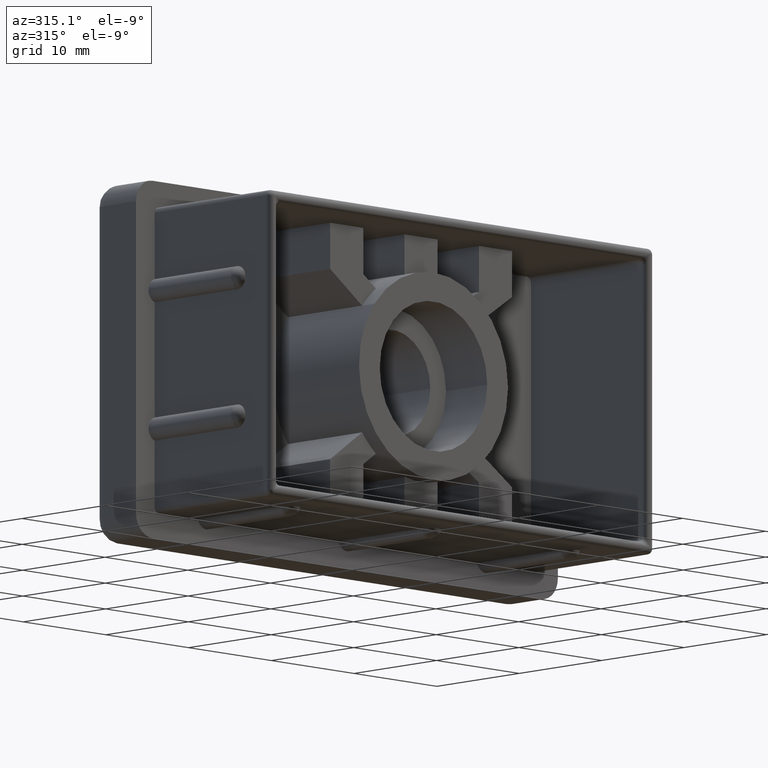
[diagram: clean part render]
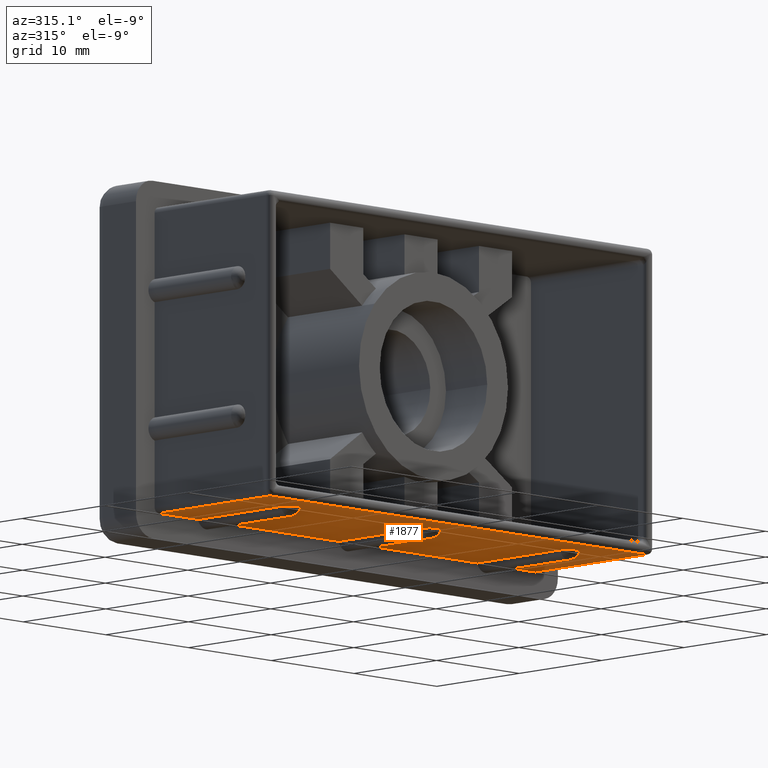
[diagram: same view with one face highlighted and labeled with its STEP entity id]
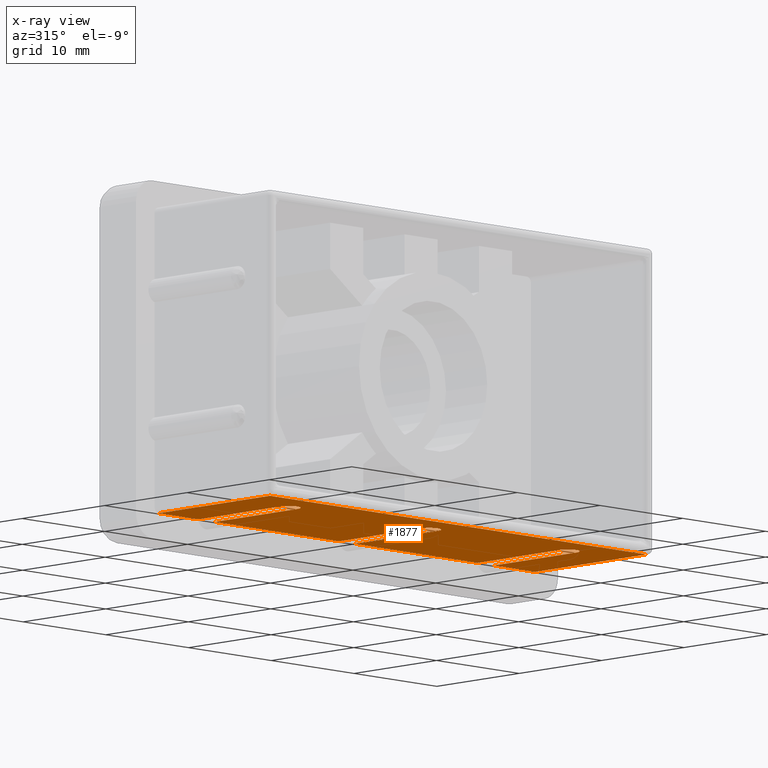
[diagram: x-ray of the same camera — body ghosted, the highlighted face saturated]
A machine part, auxiliary view. The second image highlights one B-rep face of the part: STEP entity #1877.
The next image is the same camera in x-ray: the body ghosted, the highlighted face saturated — about 0% of this face is hidden behind the body in this view.
In plain terms, the highlighted planar face has unit normal (-0, 0, -1).
Its self-contained STEP definition (entity closure, byte-faithful):
#30=B_SPLINE_CURVE_WITH_KNOTS('',3,(#2734,#2735,#2736,#2737,#2738,#2739,
#2740,#2741,#2742,#2743,#2744,#2745),.UNSPECIFIED.,.F.,.F.,(4,2,2,2,2,4),
(0.,0.0381777170336773,0.0761327850219309,0.113978632615433,0.15081953476145,
0.151166618433656),.UNSPECIFIED.);
#31=B_SPLINE_CURVE_WITH_KNOTS('',3,(#2749,#2750,#2751,#2752,#2753,#2754,
#2755,#2756,#2757,#2758,#2759,#2760),.UNSPECIFIED.,.F.,.F.,(4,2,2,2,2,4),
(-0.000348270337501188,0.,0.036834434892124,0.0746737420821856,0.112622202082561,
0.150792726476627),.UNSPECIFIED.);
#32=B_SPLINE_CURVE_WITH_KNOTS('',3,(#2768,#2769,#2770,#2771,#2772,#2773,
#2774,#2775,#2776,#2777,#2778,#2779),.UNSPECIFIED.,.F.,.F.,(4,2,2,2,2,4),
(0.,0.0381777170336762,0.0761327850219618,0.113978632615477,0.150819534761407,
0.151166618433711),.UNSPECIFIED.);
#33=B_SPLINE_CURVE_WITH_KNOTS('',3,(#2783,#2784,#2785,#2786,#2787,#2788,
#2789,#2790,#2791,#2792,#2793,#2794),.UNSPECIFIED.,.F.,.F.,(4,2,2,2,2,4),
(-0.000348270337514939,0.,0.0368344348920442,0.0746737420820881,0.112622202082372,
0.150792726476374),.UNSPECIFIED.);
#34=B_SPLINE_CURVE_WITH_KNOTS('',3,(#2802,#2803,#2804,#2805,#2806,#2807,
#2808,#2809,#2810,#2811,#2812,#2813),.UNSPECIFIED.,.F.,.F.,(4,2,2,2,2,4),
(0.,0.0381777170337059,0.0761327850219093,0.113978632615353,0.150819534761347,
0.151166618433565),.UNSPECIFIED.);
#35=B_SPLINE_CURVE_WITH_KNOTS('',3,(#2817,#2818,#2819,#2820,#2821,#2822,
#2823,#2824,#2825,#2826,#2827,#2828),.UNSPECIFIED.,.F.,.F.,(4,2,2,2,2,4),
(-0.000348270337514007,0.,0.0368344348921081,0.074673742082142,0.112622202082497,
0.150792726476603),.UNSPECIFIED.);
#60=PLANE('',#1992);
#131=LINE('',#2679,#307);
#135=LINE('',#2726,#311);
#136=LINE('',#2728,#312);
#137=LINE('',#2730,#313);
#138=LINE('',#2732,#314);
#139=LINE('',#2747,#315);
#140=LINE('',#2762,#316);
#141=LINE('',#2764,#317);
#142=LINE('',#2766,#318);
#143=LINE('',#2781,#319);
#144=LINE('',#2796,#320);
#145=LINE('',#2798,#321);
#146=LINE('',#2800,#322);
#147=LINE('',#2815,#323);
#148=LINE('',#2830,#324);
#149=LINE('',#2831,#325);
#307=VECTOR('',#2163,13.5);
#311=VECTOR('',#2181,45.5);
#312=VECTOR('',#2182,13.5);
#313=VECTOR('',#2183,4.75000000000001);
#314=VECTOR('',#2184,10.04);
#315=VECTOR('',#2185,0.083333333333333);
#316=VECTOR('',#2186,10.04);
#317=VECTOR('',#2187,15.);
#318=VECTOR('',#2188,10.04);
#319=VECTOR('',#2189,0.0833333333333286);
#320=VECTOR('',#2190,10.04);
#321=VECTOR('',#2191,14.75);
#322=VECTOR('',#2192,10.04);
#323=VECTOR('',#2193,0.0833333333333375);
#324=VECTOR('',#2194,10.04);
#325=VECTOR('',#2195,4.99999999999999);
#521=FACE_OUTER_BOUND('',#627,.T.);
#627=EDGE_LOOP('',(#1307,#1308,#1309,#1310,#1311,#1312,#1313,#1314,#1315,
#1316,#1317,#1318,#1319,#1320,#1321,#1322,#1323,#1324,#1325,#1326,#1327,
#1328));
#813=VERTEX_POINT('',#2671);
#816=VERTEX_POINT('',#2678);
#822=VERTEX_POINT('',#2725);
#823=VERTEX_POINT('',#2727);
#824=VERTEX_POINT('',#2729);
#825=VERTEX_POINT('',#2731);
#826=VERTEX_POINT('',#2733);
#827=VERTEX_POINT('',#2746);
#828=VERTEX_POINT('',#2748);
#829=VERTEX_POINT('',#2761);
#830=VERTEX_POINT('',#2763);
#831=VERTEX_POINT('',#2765);
#832=VERTEX_POINT('',#2767);
#833=VERTEX_POINT('',#2780);
#834=VERTEX_POINT('',#2782);
#835=VERTEX_POINT('',#2795);
#836=VERTEX_POINT('',#2797);
#837=VERTEX_POINT('',#2799);
#838=VERTEX_POINT('',#2801);
#839=VERTEX_POINT('',#2814);
#840=VERTEX_POINT('',#2816);
#841=VERTEX_POINT('',#2829);
#1008=EDGE_CURVE('',#813,#816,#131,.T.);
#1017=EDGE_CURVE('',#822,#813,#135,.T.);
#1018=EDGE_CURVE('',#823,#822,#136,.T.);
#1019=EDGE_CURVE('',#824,#823,#137,.T.);
#1020=EDGE_CURVE('',#824,#825,#138,.T.);
#1021=EDGE_CURVE('',#826,#825,#30,.F.);
#1022=EDGE_CURVE('',#826,#827,#139,.T.);
#1023=EDGE_CURVE('',#827,#828,#31,.T.);
#1024=EDGE_CURVE('',#828,#829,#140,.T.);
#1025=EDGE_CURVE('',#830,#829,#141,.T.);
#1026=EDGE_CURVE('',#830,#831,#142,.T.);
#1027=EDGE_CURVE('',#832,#831,#32,.F.);
#1028=EDGE_CURVE('',#832,#833,#143,.T.);
#1029=EDGE_CURVE('',#833,#834,#33,.T.);
#1030=EDGE_CURVE('',#834,#835,#144,.T.);
#1031=EDGE_CURVE('',#836,#835,#145,.T.);
#1032=EDGE_CURVE('',#836,#837,#146,.T.);
#1033=EDGE_CURVE('',#838,#837,#34,.F.);
#1034=EDGE_CURVE('',#838,#839,#147,.T.);
#1035=EDGE_CURVE('',#839,#840,#35,.T.);
#1036=EDGE_CURVE('',#840,#841,#148,.T.);
#1037=EDGE_CURVE('',#816,#841,#149,.T.);
#1307=ORIENTED_EDGE('',*,*,#1008,.F.);
#1308=ORIENTED_EDGE('',*,*,#1017,.F.);
#1309=ORIENTED_EDGE('',*,*,#1018,.F.);
#1310=ORIENTED_EDGE('',*,*,#1019,.F.);
#1311=ORIENTED_EDGE('',*,*,#1020,.T.);
#1312=ORIENTED_EDGE('',*,*,#1021,.F.);
#1313=ORIENTED_EDGE('',*,*,#1022,.T.);
#1314=ORIENTED_EDGE('',*,*,#1023,.T.);
#1315=ORIENTED_EDGE('',*,*,#1024,.T.);
#1316=ORIENTED_EDGE('',*,*,#1025,.F.);
#1317=ORIENTED_EDGE('',*,*,#1026,.T.);
#1318=ORIENTED_EDGE('',*,*,#1027,.F.);
#1319=ORIENTED_EDGE('',*,*,#1028,.T.);
#1320=ORIENTED_EDGE('',*,*,#1029,.T.);
#1321=ORIENTED_EDGE('',*,*,#1030,.T.);
#1322=ORIENTED_EDGE('',*,*,#1031,.F.);
#1323=ORIENTED_EDGE('',*,*,#1032,.T.);
#1324=ORIENTED_EDGE('',*,*,#1033,.F.);
#1325=ORIENTED_EDGE('',*,*,#1034,.T.);
#1326=ORIENTED_EDGE('',*,*,#1035,.T.);
#1327=ORIENTED_EDGE('',*,*,#1036,.T.);
#1328=ORIENTED_EDGE('',*,*,#1037,.F.);
#1877=ADVANCED_FACE('',(#521),#60,.T.);
#1992=AXIS2_PLACEMENT_3D('',#2724,#2179,#2180);
#2163=DIRECTION('',(0.,1.,0.));
#2179=DIRECTION('center_axis',(-2.86509167645202E-16,0.,-1.));
#2180=DIRECTION('ref_axis',(-1.,0.,3.5527136788005E-16));
#2181=DIRECTION('',(1.,0.,-2.86509167645202E-16));
#2182=DIRECTION('',(0.,-1.,0.));
#2183=DIRECTION('',(-1.,0.,2.86509167645202E-16));
#2184=DIRECTION('',(0.,-1.,0.));
#2185=DIRECTION('',(1.,1.11802052883818E-30,-2.86509167645202E-16));
#2186=DIRECTION('',(0.,1.,0.));
#2187=DIRECTION('',(-1.,0.,2.86509167645202E-16));
#2188=DIRECTION('',(0.,-1.,0.));
#2189=DIRECTION('',(1.,1.27773774724363E-30,-2.86509167645202E-16));
#2190=DIRECTION('',(0.,1.,0.));
#2191=DIRECTION('',(-1.,0.,2.86509167645202E-16));
#2192=DIRECTION('',(0.,-1.,0.));
#2193=DIRECTION('',(1.,-1.91660662086545E-30,-2.86509167645202E-16));
#2194=DIRECTION('',(0.,1.,0.));
#2195=DIRECTION('',(-1.,0.,2.86509167645202E-16));
#2671=CARTESIAN_POINT('',(46.,0.5,-26.5));
#2678=CARTESIAN_POINT('',(46.,14.,-26.5));
#2679=CARTESIAN_POINT('',(46.,0.,-26.5));
#2724=CARTESIAN_POINT('Origin',(46.5,0.,-26.5));
#2725=CARTESIAN_POINT('',(0.499999999999998,0.5,-26.5));
#2726=CARTESIAN_POINT('',(34.875,0.5,-26.5));
#2727=CARTESIAN_POINT('',(0.499999999999998,14.,-26.5));
#2728=CARTESIAN_POINT('',(0.499999999999998,0.,-26.5));
#2729=CARTESIAN_POINT('',(5.25000000000001,14.,-26.5));
#2730=CARTESIAN_POINT('',(46.5,14.,-26.5));
#2731=CARTESIAN_POINT('',(5.25000000000001,3.96,-26.5));
#2732=CARTESIAN_POINT('',(5.25000000000001,14.,-26.5));
#2733=CARTESIAN_POINT('',(6.20833333333334,3.,-26.5));
#2734=CARTESIAN_POINT('Ctrl Pts',(5.25,3.96,-26.5));
#2735=CARTESIAN_POINT('Ctrl Pts',(5.25,3.83274094322107,-26.5));
#2736=CARTESIAN_POINT('Ctrl Pts',(5.2752253737471,3.70675081638066,-26.5));
#2737=CARTESIAN_POINT('Ctrl Pts',(5.37303209591614,3.47259885702832,-26.5));
#2738=CARTESIAN_POINT('Ctrl Pts',(5.4443740631272,3.3666470192674,-26.5));
#2739=CARTESIAN_POINT('Ctrl Pts',(5.62381309503585,3.18880057910979,-26.5));
#2740=CARTESIAN_POINT('Ctrl Pts',(5.73004675420461,3.11855221455567,-26.5000000000353));
#2741=CARTESIAN_POINT('Ctrl Pts',(5.96052803803035,3.02453295746145,-26.5000000000353));
#2742=CARTESIAN_POINT('Ctrl Pts',(6.08208169868931,3.00045174450247,-26.5));
#2743=CARTESIAN_POINT('Ctrl Pts',(6.20601983514332,3.00000209834013,-26.5));
#2744=CARTESIAN_POINT('Ctrl Pts',(6.20717658376274,3.,-26.5));
#2745=CARTESIAN_POINT('Ctrl Pts',(6.20833333333334,3.,-26.5));
#2746=CARTESIAN_POINT('',(6.29166666666667,3.,-26.5));
#2747=CARTESIAN_POINT('',(26.375,3.,-26.5));
#2748=CARTESIAN_POINT('',(7.25000000000002,3.96,-26.5));
#2749=CARTESIAN_POINT('Ctrl Pts',(6.29166666666667,3.,-26.5));
#2750=CARTESIAN_POINT('Ctrl Pts',(6.29282756779168,3.,-26.5));
#2751=CARTESIAN_POINT('Ctrl Pts',(6.29398846795495,3.00000211342897,-26.5));
#2752=CARTESIAN_POINT('Ctrl Pts',(6.41792999717972,3.00045338572119,-26.5));
#2753=CARTESIAN_POINT('Ctrl Pts',(6.53948261354032,3.0245358878832,-26.5000000000354));
#2754=CARTESIAN_POINT('Ctrl Pts',(6.7699617996577,3.11855715723661,-26.5000000000354));
#2755=CARTESIAN_POINT('Ctrl Pts',(6.87619438803501,3.188806339932,-26.5000000000001));
#2756=CARTESIAN_POINT('Ctrl Pts',(7.05563103566258,3.36665373353094,-26.5000000000001));
#2757=CARTESIAN_POINT('Ctrl Pts',(7.12697177212631,3.47260566417827,-26.5000000000001));
#2758=CARTESIAN_POINT('Ctrl Pts',(7.22477558440103,3.70675557775682,-26.5000000000001));
#2759=CARTESIAN_POINT('Ctrl Pts',(7.25000000000001,3.8327433601163,-26.5));
#2760=CARTESIAN_POINT('Ctrl Pts',(7.25000000000001,3.95999999999999,-26.5));
#2761=CARTESIAN_POINT('',(7.25000000000001,14.,-26.5));
#2762=CARTESIAN_POINT('',(7.25,14.,-26.5));
#2763=CARTESIAN_POINT('',(22.25,14.,-26.5));
#2764=CARTESIAN_POINT('',(46.5,14.,-26.5));
#2765=CARTESIAN_POINT('',(22.25,3.95999999999999,-26.5));
#2766=CARTESIAN_POINT('',(22.25,14.,-26.5));
#2767=CARTESIAN_POINT('',(23.2083333333333,3.,-26.5));
#2768=CARTESIAN_POINT('Ctrl Pts',(22.25,3.95999999999999,-26.5));
#2769=CARTESIAN_POINT('Ctrl Pts',(22.25,3.83274094322107,-26.5));
#2770=CARTESIAN_POINT('Ctrl Pts',(22.2752253737471,3.70675081638066,-26.5));
#2771=CARTESIAN_POINT('Ctrl Pts',(22.3730320959162,3.47259885702821,-26.5));
#2772=CARTESIAN_POINT('Ctrl Pts',(22.4443740631273,3.36664701926736,-26.5000000000001));
#2773=CARTESIAN_POINT('Ctrl Pts',(22.6238130950358,3.18880057910988,-26.5000000000001));
#2774=CARTESIAN_POINT('Ctrl Pts',(22.7300467542046,3.11855221455568,-26.5000000000353));
#2775=CARTESIAN_POINT('Ctrl Pts',(22.9605280380301,3.02453295746155,-26.5000000000353));
#2776=CARTESIAN_POINT('Ctrl Pts',(23.0820816986888,3.00045174450258,-26.5));
#2777=CARTESIAN_POINT('Ctrl Pts',(23.2060198351428,3.00000209834013,-26.5));
#2778=CARTESIAN_POINT('Ctrl Pts',(23.2071765837624,3.,-26.5));
#2779=CARTESIAN_POINT('Ctrl Pts',(23.2083333333333,3.,-26.5));
#2780=CARTESIAN_POINT('',(23.2916666666667,3.,-26.5));
#2781=CARTESIAN_POINT('',(34.875,3.,-26.5));
#2782=CARTESIAN_POINT('',(24.25,3.95999999999999,-26.5));
#2783=CARTESIAN_POINT('Ctrl Pts',(23.2916666666667,3.,-26.5));
#2784=CARTESIAN_POINT('Ctrl Pts',(23.2928275677917,3.,-26.5));
#2785=CARTESIAN_POINT('Ctrl Pts',(23.2939884679557,3.00000211342898,-26.5));
#2786=CARTESIAN_POINT('Ctrl Pts',(23.4179299971802,3.00045338572129,-26.5));
#2787=CARTESIAN_POINT('Ctrl Pts',(23.5394826135406,3.02453588788329,-26.5000000000354));
#2788=CARTESIAN_POINT('Ctrl Pts',(23.7699617996577,3.11855715723659,-26.5000000000354));
#2789=CARTESIAN_POINT('Ctrl Pts',(23.876194388035,3.18880633993191,-26.5));
#2790=CARTESIAN_POINT('Ctrl Pts',(24.0556310356625,3.36665373353084,-26.5));
#2791=CARTESIAN_POINT('Ctrl Pts',(24.1269717721263,3.47260566417798,-26.4999999999998));
#2792=CARTESIAN_POINT('Ctrl Pts',(24.2247755844013,3.70675557775722,-26.4999999999998));
#2793=CARTESIAN_POINT('Ctrl Pts',(24.25,3.83274336011718,-26.5));
#2794=CARTESIAN_POINT('Ctrl Pts',(24.25,3.95999999999999,-26.5));
#2795=CARTESIAN_POINT('',(24.25,14.,-26.5));
#2796=CARTESIAN_POINT('',(24.25,14.,-26.5));
#2797=CARTESIAN_POINT('',(39.,14.,-26.5));
#2798=CARTESIAN_POINT('',(46.5,14.,-26.5));
#2799=CARTESIAN_POINT('',(39.,3.95999999999999,-26.5));
#2800=CARTESIAN_POINT('',(39.,14.,-26.5));
#2801=CARTESIAN_POINT('',(39.9583333333333,3.,-26.5));
#2802=CARTESIAN_POINT('Ctrl Pts',(39.,3.95999999999999,-26.5));
#2803=CARTESIAN_POINT('Ctrl Pts',(39.,3.83274094322097,-26.5));
#2804=CARTESIAN_POINT('Ctrl Pts',(39.0252253737472,3.7067508163806,-26.5000000000001));
#2805=CARTESIAN_POINT('Ctrl Pts',(39.1230320959161,3.47259885702859,-26.5000000000001));
#2806=CARTESIAN_POINT('Ctrl Pts',(39.1943740631271,3.36664701926748,-26.4999999999999));
#2807=CARTESIAN_POINT('Ctrl Pts',(39.3738130950359,3.18880057910969,-26.4999999999999));
#2808=CARTESIAN_POINT('Ctrl Pts',(39.4800467542046,3.11855221455563,-26.5000000000353));
#2809=CARTESIAN_POINT('Ctrl Pts',(39.7105280380304,3.0245329574614,-26.5000000000353));
#2810=CARTESIAN_POINT('Ctrl Pts',(39.8320816986893,3.00045174450249,-26.5));
#2811=CARTESIAN_POINT('Ctrl Pts',(39.9560198351432,3.00000209834013,-26.5));
#2812=CARTESIAN_POINT('Ctrl Pts',(39.9571765837627,3.,-26.5));
#2813=CARTESIAN_POINT('Ctrl Pts',(39.9583333333333,3.,-26.5));
#2814=CARTESIAN_POINT('',(40.0416666666667,3.,-26.5));
#2815=CARTESIAN_POINT('',(43.25,3.,-26.5));
#2816=CARTESIAN_POINT('',(41.,3.95999999999999,-26.5));
#2817=CARTESIAN_POINT('Ctrl Pts',(40.0416666666667,3.,-26.5));
#2818=CARTESIAN_POINT('Ctrl Pts',(40.0428275677917,3.,-26.5));
#2819=CARTESIAN_POINT('Ctrl Pts',(40.043988467955,3.00000211342897,-26.5));
#2820=CARTESIAN_POINT('Ctrl Pts',(40.1679299971798,3.00045338572121,-26.5));
#2821=CARTESIAN_POINT('Ctrl Pts',(40.2894826135404,3.02453588788318,-26.5000000000353));
#2822=CARTESIAN_POINT('Ctrl Pts',(40.5199617996578,3.11855715723664,-26.5000000000353));
#2823=CARTESIAN_POINT('Ctrl Pts',(40.6261943880351,3.18880633993204,-26.5000000000001));
#2824=CARTESIAN_POINT('Ctrl Pts',(40.8056310356626,3.36665373353099,-26.5000000000001));
#2825=CARTESIAN_POINT('Ctrl Pts',(40.8769717721264,3.47260566417834,-26.5000000000001));
#2826=CARTESIAN_POINT('Ctrl Pts',(40.9747755844011,3.70675557775704,-26.5000000000001));
#2827=CARTESIAN_POINT('Ctrl Pts',(41.,3.83274336011674,-26.5));
#2828=CARTESIAN_POINT('Ctrl Pts',(41.,3.95999999999999,-26.5));
#2829=CARTESIAN_POINT('',(41.,14.,-26.5));
#2830=CARTESIAN_POINT('',(41.,14.,-26.5));
#2831=CARTESIAN_POINT('',(46.5,14.,-26.5));